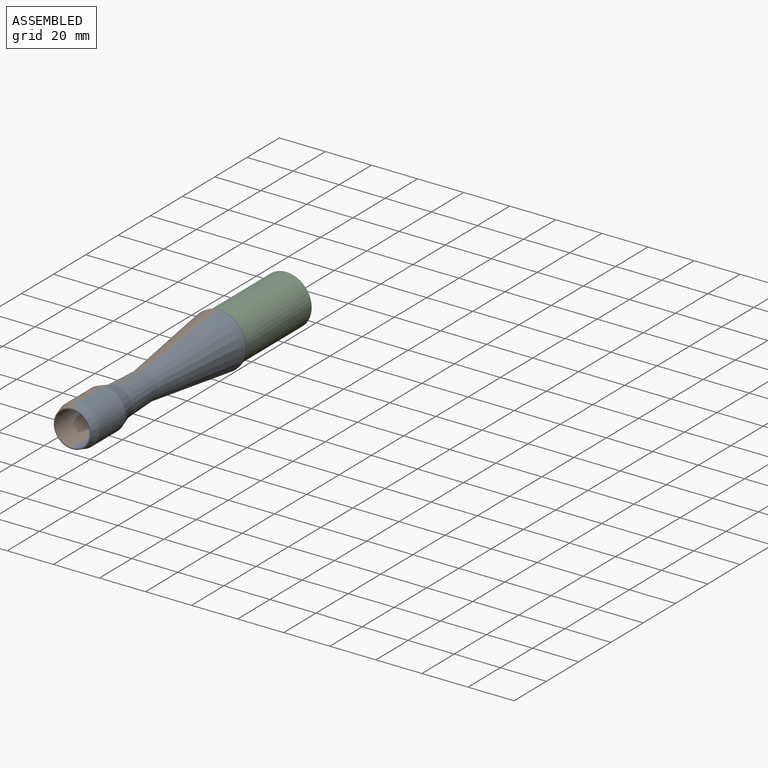
[diagram: assembled view]
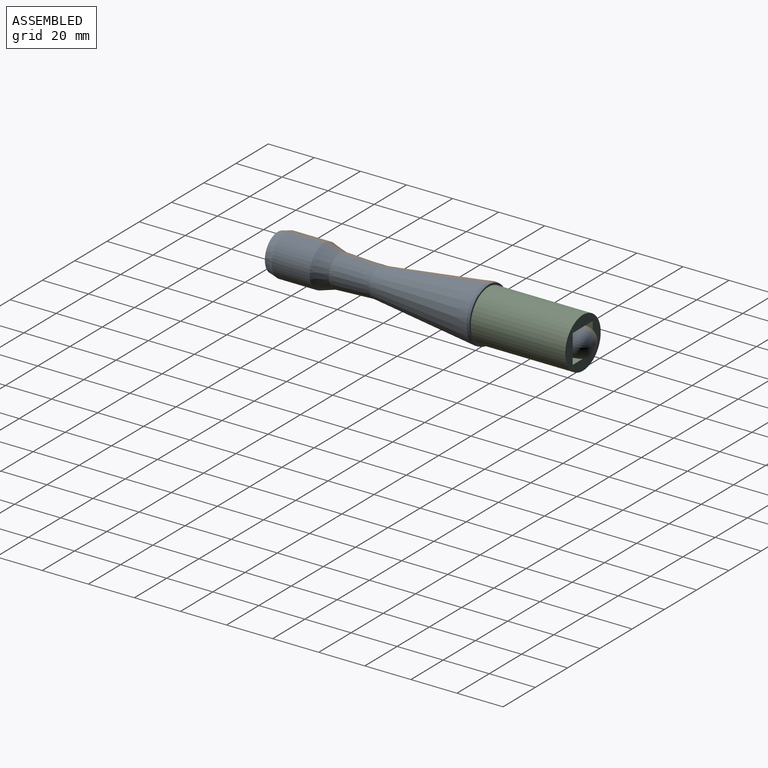
[diagram: assembled view, second angle]
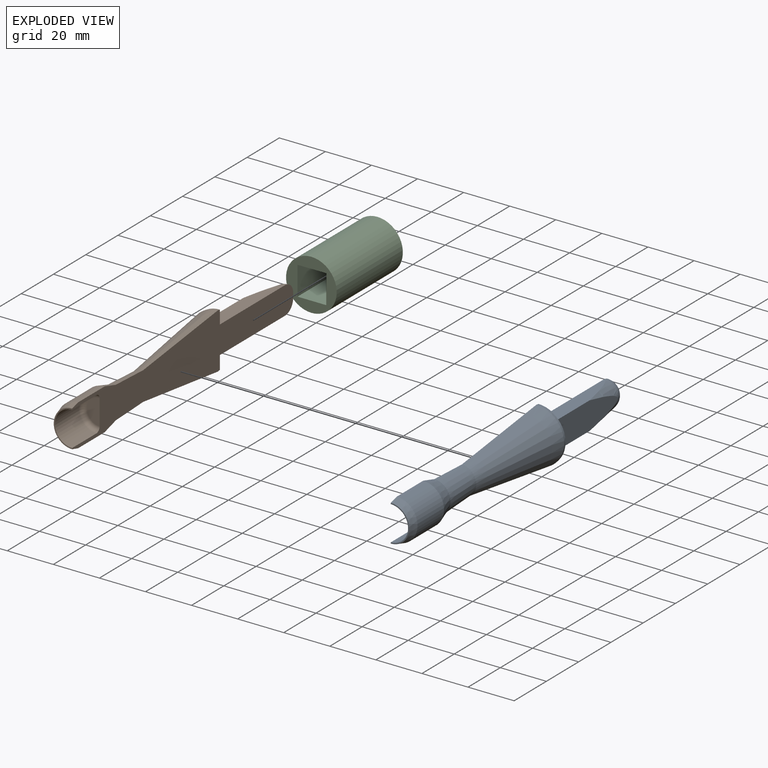
[diagram: exploded view]
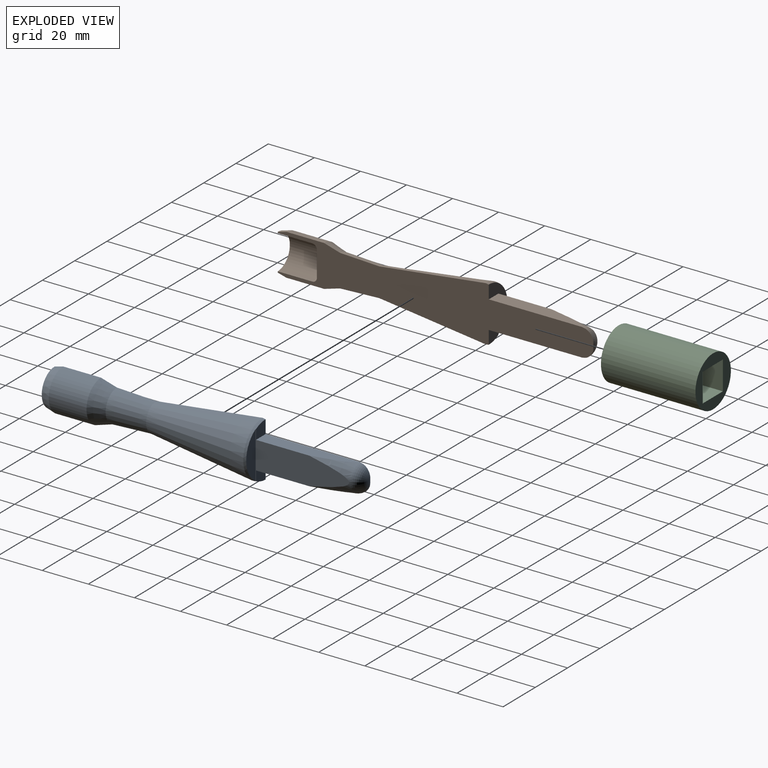
[diagram: exploded view, second angle]
ASSEMBLY  parts=3 mates=2
PART A: 20 faces, bbox 12x137x24 mm
  f0: cone r=12mm half-angle=8.2deg, axis (0,-1,0), area 122mm2, adj f2,f12,f14,f16,f19
  f1: cone r=12mm half-angle=8.2deg, axis (0,-1,0), area 46.3mm2, adj f2,f9,f13,f15,f18,f19
  f2: plane 137x24mm, normal (-1,0,0), area 1847.6mm2, adj f0,f1,f3,f4,f5,f6,f7,f8
  f3: cylinder r=9mm len=18mm, axis (0,1,0), area 463.8mm2, adj f2,f4,f11
  f4: cone r=8mm half-angle=15deg, axis (0,1,0), area 103.2mm2, adj f2,f3,f5
  f5: plane 16x8mm, normal (0,-1,0), area 12.2mm2, adj f2,f4,f6
  f6: cylinder r=7.5mm len=15mm, axis (0,1,0), area 353.4mm2, adj f2,f5,f17
  f7: plane 11x5.5mm, normal (0,-1,0), area 47.5mm2, adj f2,f17
  f8: plane 1.9x0.95mm, normal (0,1,0), area 1.4mm2, adj f2,f16
  f9: cone r=6.22mm half-angle=7.1deg, axis (0,1,0), area 1332.8mm2, adj f1,f2,f10
  f10: cone r=6.98mm half-angle=2.5deg, axis (0,-1,0), area 353.7mm2, adj f2,f9,f11
  f11: cone r=9mm half-angle=16.3deg, axis (0,-1,0), area 180.3mm2, adj f2,f3,f10
  f12: plane 40.42x6mm, normal (0,0,1), area 205.5mm2, adj f0,f2,f13,f19
  f13: plane 6x5.81mm, normal (0,1,0), area 31.7mm2, adj f1,f2,f12,f19
  f14: plane 40.42x6mm, normal (0,0,-1), area 205.5mm2, adj f0,f2,f15,f19
  f15: plane 6x5.81mm, normal (0,1,0), area 31.7mm2, adj f1,f2,f14,f19
  f16: torus R=0.95mm, axis (0,-1,0), area 88.7mm2, adj f0,f2,f8
  f17: torus R=5.5mm, axis (0,-1,0), area 66.8mm2, adj f2,f6,f7
  f18: plane 20.39x5.83mm, normal (0,1,0), area 84.2mm2, adj f1,f19
  f19: plane 40.57x20.39mm, normal (1,0,0), area 413.9mm2, adj f0,f1,f12,f13,f14,f15,f18
PART B: 20 faces, bbox 12x137x24 mm
  f0: cone r=12mm half-angle=8.2deg, axis (0,-1,0), area 122mm2, adj f2,f12,f14,f16,f19
  f1: cone r=12mm half-angle=8.2deg, axis (0,-1,0), area 46.3mm2, adj f2,f9,f13,f15,f18,f19
  f2: plane 137x24mm, normal (1,0,0), area 1847.6mm2, adj f0,f1,f3,f4,f5,f6,f7,f8
  f3: cylinder r=9mm len=18mm, axis (0,1,0), area 463.8mm2, adj f2,f4,f11
  f4: cone r=8mm half-angle=15deg, axis (0,1,0), area 103.2mm2, adj f2,f3,f5
  f5: plane 16x8mm, normal (0,-1,0), area 12.2mm2, adj f2,f4,f6
  f6: cylinder r=7.5mm len=15mm, axis (0,1,0), area 353.4mm2, adj f2,f5,f17
  f7: plane 11x5.5mm, normal (0,-1,0), area 47.5mm2, adj f2,f17
  f8: plane 1.9x0.95mm, normal (0,1,0), area 1.4mm2, adj f2,f16
  f9: cone r=6.22mm half-angle=7.1deg, axis (0,1,0), area 1332.8mm2, adj f1,f2,f10
  f10: cone r=6.98mm half-angle=2.5deg, axis (0,-1,0), area 353.7mm2, adj f2,f9,f11
  f11: cone r=9mm half-angle=16.3deg, axis (0,-1,0), area 180.3mm2, adj f2,f3,f10
  f12: plane 40.42x6mm, normal (0,0,1), area 205.5mm2, adj f0,f2,f13,f19
  f13: plane 6x5.81mm, normal (0,1,0), area 31.7mm2, adj f1,f2,f12,f19
  f14: plane 40.42x6mm, normal (0,0,-1), area 205.5mm2, adj f0,f2,f15,f19
  f15: plane 6x5.81mm, normal (0,1,0), area 31.7mm2, adj f1,f2,f14,f19
  f16: torus R=0.95mm, axis (0,-1,0), area 88.7mm2, adj f0,f2,f8
  f17: torus R=5.5mm, axis (0,-1,0), area 66.8mm2, adj f2,f6,f7
  f18: plane 20.39x5.83mm, normal (0,1,0), area 84.2mm2, adj f1,f19
  f19: plane 40.57x20.39mm, normal (-1,0,0), area 413.9mm2, adj f0,f1,f12,f13,f14,f15,f18
PART C: 7 faces, bbox 22x41x22 mm
  f0: plane 41x12.5mm, normal (1,0,0), area 512.5mm2, adj f1,f3,f5,f6
  f1: plane 41x12.5mm, normal (0,0,-1), area 512.5mm2, adj f0,f2,f5,f6
  f2: plane 41x12.5mm, normal (-1,0,0), area 512.5mm2, adj f1,f3,f5,f6
  f3: plane 41x12.5mm, normal (0,0,1), area 512.5mm2, adj f0,f2,f5,f6
  f4: cylinder r=11mm len=41mm, axis (0,1,0), area 2833.7mm2, adj f5,f6
  f5: plane 22x22mm, normal (0,-1,0), area 223.9mm2, adj f0,f1,f2,f3,f4
  f6: plane 22x22mm, normal (0,1,0), area 223.9mm2, adj f0,f1,f2,f3,f4
PLACE A t=(-38.52,-28.32,-1.5)mm
PLACE B t=(-2.52,-28.32,-1.5)mm
PLACE C t=(-2.38,64.99,-1.5)mm
MATE fastened C.f5 <-> B.f0  axis (0,-1,0) through (-2.52,23.99,-1.5)mm
MATE fastened A.f2 <-> B.f2  axis (-1,0,0) through (-2.52,5.08,-1.5)mm
